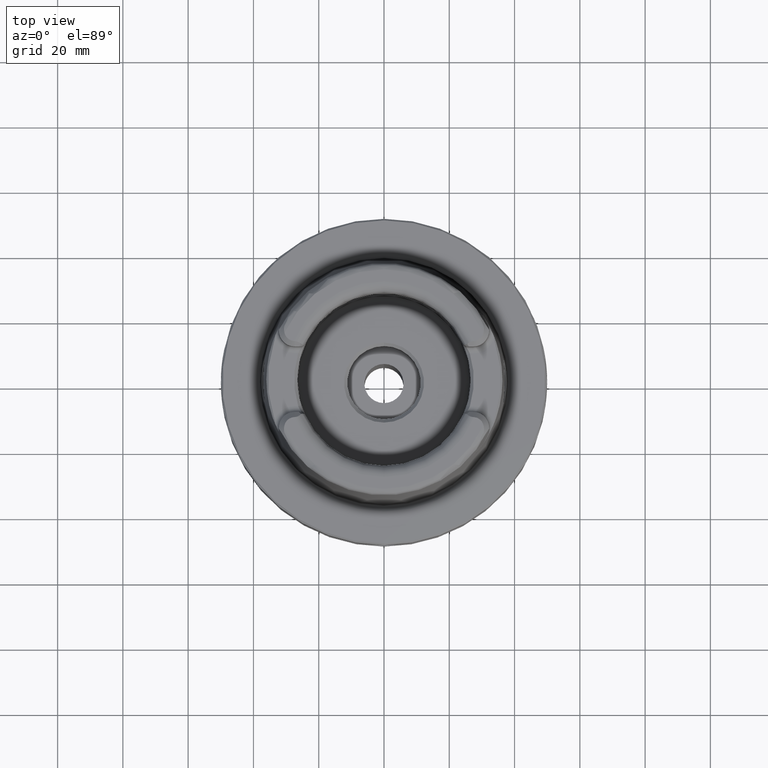
[diagram: clean part render]
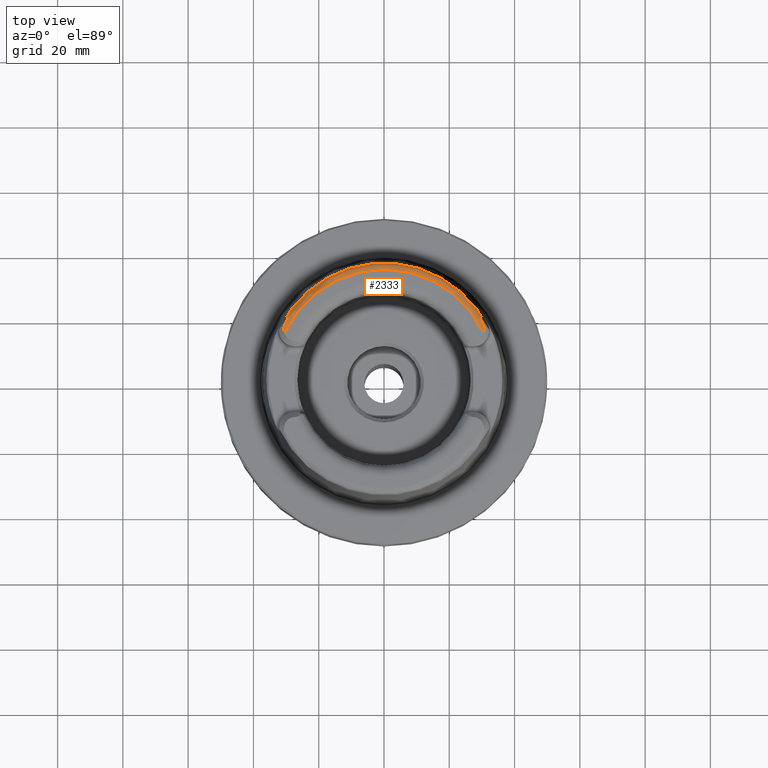
[diagram: same view with one face highlighted and labeled with its STEP entity id]
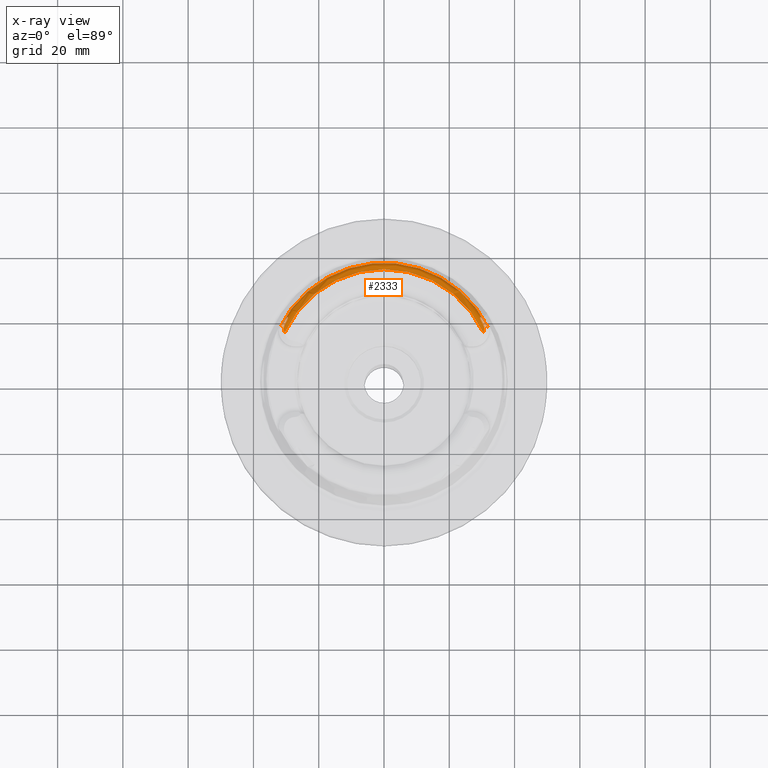
[diagram: x-ray of the same camera — body ghosted, the highlighted face saturated]
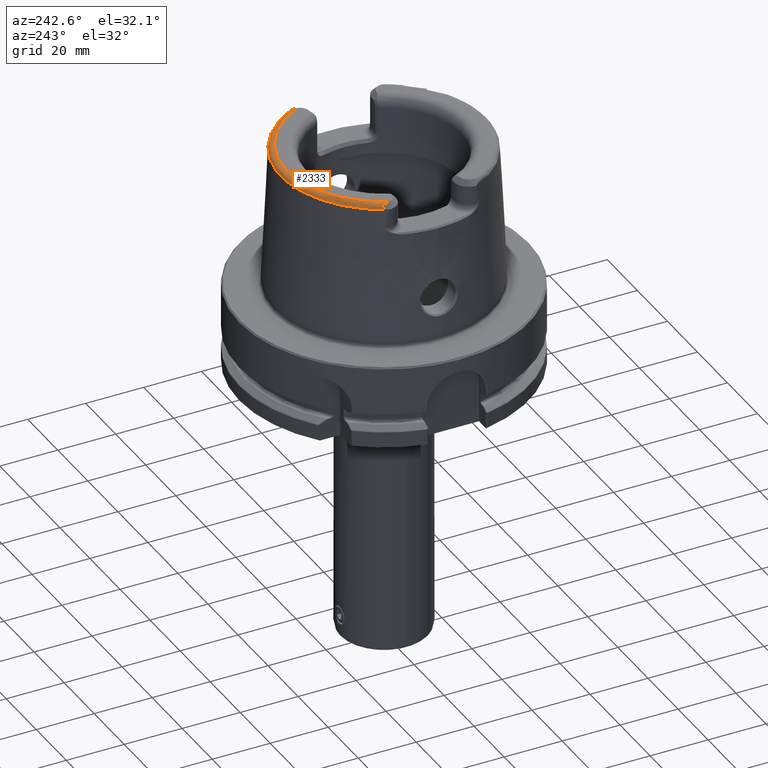
[diagram: same view with one face highlighted and labeled with its STEP entity id]
A machine part, top view. The second image highlights one B-rep face of the part: STEP entity #2333.
The next image is the same camera in x-ray: the body ghosted, the highlighted face saturated — about 0% of this face is hidden behind the body in this view.
A second angle (auxiliary view) of the same face is appended — the face is thin or edge-on in the first view.
In plain terms, the highlighted toroidal blend (fillet) surface has major radius 33.6332 mm and minor (blend) radius 2 mm.
Its self-contained STEP definition (entity closure, byte-faithful):
#1695=VERTEX_POINT('NONE',#4575);
#2101=VERTEX_POINT('NONE',#5020);
#2333=ADVANCED_FACE('NONE',(#5280),#5281,.T.);
#2493=EDGE_CURVE('NONE',#2811,#2615,#5456,.T.);
#2553=VERTEX_POINT('NONE',#5523);
#2555=EDGE_CURVE('NONE',#1695,#3645,#5525,.T.);
#2595=EDGE_CURVE('NONE',#2989,#2553,#5570,.F.);
#2615=VERTEX_POINT('NONE',#5592);
#2811=VERTEX_POINT('NONE',#5804);
#2989=VERTEX_POINT('NONE',#5998);
#3095=EDGE_CURVE('NONE',#3611,#1695,#6116,.F.);
#3117=EDGE_CURVE('NONE',#2615,#2101,#6141,.F.);
#3611=VERTEX_POINT('NONE',#6687);
#3645=VERTEX_POINT('NONE',#6722);
#3697=EDGE_CURVE('NONE',#2553,#3645,#6781,.T.);
#4039=EDGE_CURVE('NONE',#2101,#2989,#7156,.T.);
#4051=EDGE_CURVE('NONE',#2811,#3611,#7168,.T.);
#4575=CARTESIAN_POINT('',(30.4181477395793,16.5634017130128,49.6307843275391));
#5020=CARTESIAN_POINT('',(-31.0580273497776,16.9118313124223,48.9021904068315));
#5280=FACE_OUTER_BOUND('',#9635,.T.);
#5281=TOROIDAL_SURFACE('',#9636,33.6331959518266,2.0);
#5456=CIRCLE('',#10025,35.5860815135478);
#5523=CARTESIAN_POINT('',(-30.496606213829,14.1826964774901,49.9));
#5525=B_SPLINE_CURVE_WITH_KNOTS('',3,(#10198,#10199,#10200,#10201,#10202,#10203,#10204,#10205,#10206,#10207,#10208,#10209,#10210,#10211),.UNSPECIFIED.,.F.,.F.,(4,2,2,2,2,2,4),(-8.06090723250279,-6.36206393140642,-5.47091945156589,-4.69641120084643,-3.4097076069704,-1.6669104195362,-0.0),.UNSPECIFIED.);
#5570=B_SPLINE_CURVE_WITH_KNOTS('',3,(#10286,#10287,#10288,#10289,#10290,#10291,#10292,#10293,#10294,#10295,#10296,#10297,#10298,#10299),.UNSPECIFIED.,.F.,.F.,(4,2,2,2,2,2,4),(-8.43815479009954,-6.61428263942645,-4.74567154742033,-3.56202974667713,-2.6052635841303,-1.50721152599628,-0.0),.UNSPECIFIED.);
#5592=CARTESIAN_POINT('',(-32.125186888805,15.3082188659629,48.3315529895861));
#5804=CARTESIAN_POINT('',(32.1251868888049,15.3082188659629,48.3315529895861));
#5998=CARTESIAN_POINT('',(-30.4181477395794,16.5634017130129,49.6307843275391));
#6116=B_SPLINE_CURVE_WITH_KNOTS('',3,(#11811,#11812,#11813,#11814,#11815,#11816,#11817,#11818,#11819,#11820,#11821,#11822,#11823,#11824,#11825,#11826,#11827,#11828,#11829,#11830,#11831,#11832,#11833,#11834,#11835,#11836,#11837,#11838,#11839,#11840,#11841,#11842,#11843,#11844,#11845,#11846,#11847,#11848,#11849,#11850,#11851,#11852,#11853),.UNSPECIFIED.,.F.,.F.,(4,2,3,2,2,2,2,2,2,2,2,2,2,2,2,2,2,2,2,2,4),(-1.78284719794837,-1.18856479863225,0.0,1.18856479863225,1.78284719794838,2.07998839760644,2.22855899743548,2.37712959726451,2.51917942762677,2.55847751066119,2.59122893654687,2.62526387826526,2.66764170009564,2.82769379727306,3.20616323122387,3.69645777759965,4.18675232397542,5.16734141672698,6.14793050947854,6.63822505585432,7.12851960223009),.UNSPECIFIED.);
#6141=B_SPLINE_CURVE_WITH_KNOTS('',3,(#11937,#11938,#11939,#11940,#11941,#11942,#11943,#11944,#11945,#11946,#11947,#11948,#11949,#11950),.UNSPECIFIED.,.F.,.F.,(4,2,2,2,2,2,4),(-8.34696128507904,-6.36334548457046,-5.01217396447671,-4.16988868928325,-3.2600256206146,-1.88177566473488,-0.0),.UNSPECIFIED.);
#6687=CARTESIAN_POINT('',(31.0580273497776,16.9118313124223,48.9021904068315));
#6722=CARTESIAN_POINT('',(30.496606213829,14.1826964774901,49.9));
#6781=CIRCLE('',#13492,33.6331959518266);
#7156=B_SPLINE_CURVE_WITH_KNOTS('',3,(#14503,#14504,#14505,#14506,#14507,#14508,#14509,#14510,#14511,#14512,#14513,#14514,#14515,#14516,#14517,#14518,#14519,#14520,#14521,#14522,#14523,#14524,#14525,#14526,#14527,#14528,#14529,#14530,#14531,#14532,#14533,#14534,#14535,#14536,#14537,#14538,#14539,#14540,#14541,#14542,#14543,#14544,#14545),.UNSPECIFIED.,.F.,.F.,(4,2,2,2,2,2,2,2,2,2,2,2,2,2,2,2,2,2,3,2,4),(-7.12851960223014,-6.63822505585437,-6.14793050947859,-5.16734141672703,-4.18675232397548,-3.6964577775997,-3.20616323122392,-2.82769379727311,-2.66764170009569,-2.62526387826526,-2.5912289365469,-2.55847751066123,-2.51917942762677,-2.37712959726451,-2.22855899743548,-2.07998839760644,-1.78284719794838,-1.18856479863225,0.0,1.18856479863225,1.78284719794837),.UNSPECIFIED.);
#7168=B_SPLINE_CURVE_WITH_KNOTS('',3,(#14586,#14587,#14588,#14589,#14590,#14591,#14592,#14593,#14594,#14595,#14596,#14597,#14598,#14599),.UNSPECIFIED.,.F.,.F.,(4,2,2,2,2,2,4),(-7.53272338058616,-6.08619009708805,-4.34826499165915,-3.2292003037335,-1.83488229076628,-1.21921091515754,-0.0),.UNSPECIFIED.);
#9635=EDGE_LOOP('',(#16504,#16505,#16506,#16507,#16508,#16509,#16510,#16511));
#9636=AXIS2_PLACEMENT_3D('',#16512,#16513,#16514);
#10025=AXIS2_PLACEMENT_3D('',#16701,#16702,#16703);
#10198=CARTESIAN_POINT('',(28.9133988526347,17.7373551775963,49.8792606274372));
#10199=CARTESIAN_POINT('',(29.2782250600654,17.5737532310577,49.8465418692058));
#10200=CARTESIAN_POINT('',(29.5922991430573,17.391291021356,49.7819645011148));
#10201=CARTESIAN_POINT('',(29.975869392027,17.0976579131723,49.6994887379784));
#10202=CARTESIAN_POINT('',(30.142862122789,16.9541971515403,49.6604782623858));
#10203=CARTESIAN_POINT('',(30.4013377849035,16.6167439857281,49.6251392258631));
#10204=CARTESIAN_POINT('',(30.4850086634878,16.4525620460949,49.6281397580463));
#10205=CARTESIAN_POINT('',(30.6409893431908,15.9532241897072,49.682032585538));
#10206=CARTESIAN_POINT('',(30.6655160031615,15.5834468151489,49.7592267524538));
#10207=CARTESIAN_POINT('',(30.6162319672358,14.6796279934029,49.8927223820798));
#10208=CARTESIAN_POINT('',(30.502853303712,14.1424157810186,49.9358884877607));
#10209=CARTESIAN_POINT('',(30.1883029324988,13.0563161382792,49.7914093068295));
#10210=CARTESIAN_POINT('',(30.0157598988514,12.5795436026635,49.6217949476739));
#10211=CARTESIAN_POINT('',(29.8999278443559,12.1075464399639,49.3524738116563));
#10286=CARTESIAN_POINT('',(-29.8999278443536,12.1075464399543,49.3524738116508));
#10287=CARTESIAN_POINT('',(-30.0150011072334,12.5764516477465,49.6200306811148));
#10288=CARTESIAN_POINT('',(-30.1861108715315,13.050231524033,49.789275423848));
#10289=CARTESIAN_POINT('',(-30.4960566055359,14.1174550441249,49.9339000945124));
#10290=CARTESIAN_POINT('',(-30.6093015213348,14.6424002786496,49.8960203021873));
#10291=CARTESIAN_POINT('',(-30.6626221396572,15.4795980891451,49.7758109132591));
#10292=CARTESIAN_POINT('',(-30.650150978293,15.7806470898254,49.7171279824214));
#10293=CARTESIAN_POINT('',(-30.5581493010658,16.2540931754033,49.6458048251716));
#10294=CARTESIAN_POINT('',(-30.4971479297913,16.414646425286,49.6317556178563));
#10295=CARTESIAN_POINT('',(-30.3449706490392,16.7015809484855,49.6297818800716));
#10296=CARTESIAN_POINT('',(-30.2263250953411,16.8660090312698,49.6463720427751));
#10297=CARTESIAN_POINT('',(-29.7520001882547,17.2957130801289,49.7466040582427));
#10298=CARTESIAN_POINT('',(-29.3702920642866,17.532466884859,49.8382850115825));
#10299=CARTESIAN_POINT('',(-28.9133988526292,17.7373551775988,49.8792606274377));
#11811=CARTESIAN_POINT('',(31.3897635681339,14.962249336377,49.5431795937648));
#11812=CARTESIAN_POINT('',(31.2726253198574,15.1264741317325,49.5675190735265));
#11813=CARTESIAN_POINT('',(31.1585818578514,15.3012295981141,49.5841045932855));
#11814=CARTESIAN_POINT('',(30.8220676862108,15.8399464904068,49.6220182310662));
#11815=CARTESIAN_POINT('',(30.6076136614912,16.2154537187417,49.6307843275395));
#11816=CARTESIAN_POINT('',(30.4181477395789,16.5634017130125,49.6307843275395));
#11817=CARTESIAN_POINT('',(30.2286818176667,16.9113497072832,49.6307843275395));
#11818=CARTESIAN_POINT('',(30.0296252488824,17.29524121497,49.6220182310662));
#11819=CARTESIAN_POINT('',(29.759705549347,17.870220374209,49.5841045932855));
#11820=CARTESIAN_POINT('',(29.6747941885476,18.0608389595142,49.5675190735266));
#11821=CARTESIAN_POINT('',(29.5632144586223,18.3420951723562,49.5310098538839));
#11822=CARTESIAN_POINT('',(29.5287181489416,18.4348535045519,49.5169467893348));
#11823=CARTESIAN_POINT('',(29.483727996141,18.5732175261235,49.4902901859511));
#11824=CARTESIAN_POINT('',(29.4698791991895,18.6191774610041,49.4804736905055));
#11825=CARTESIAN_POINT('',(29.4457774408393,18.7111540301339,49.4576555816437));
#11826=CARTESIAN_POINT('',(29.4353719782737,18.7571645415848,49.4447908287592));
#11827=CARTESIAN_POINT('',(29.4224573042048,18.8476998229,49.4128370414295));
#11828=CARTESIAN_POINT('',(29.4189774699213,18.8999925661698,49.3908856304582));
#11829=CARTESIAN_POINT('',(29.4317670907663,18.9481306398817,49.3566326033173));
#11830=CARTESIAN_POINT('',(29.436500627101,18.9596053493922,49.3469879691486));
#11831=CARTESIAN_POINT('',(29.4466211465293,18.9744146383622,49.3310176071686));
#11832=CARTESIAN_POINT('',(29.4533849426408,18.9809949728125,49.3219305171893));
#11833=CARTESIAN_POINT('',(29.4669273111375,18.989030776645,49.3061941830541));
#11834=CARTESIAN_POINT('',(29.4762552407046,18.9918067293421,49.2966745098528));
#11835=CARTESIAN_POINT('',(29.4949562187951,18.9934583257025,49.2794607515814));
#11836=CARTESIAN_POINT('',(29.508023454718,18.9917575491079,49.2687979438083));
#11837=CARTESIAN_POINT('',(29.5608006966245,18.9776624776468,49.2291874830902));
#11838=CARTESIAN_POINT('',(29.6089739171002,18.9450266935771,49.2024870292197));
#11839=CARTESIAN_POINT('',(29.7401655321078,18.841665577358,49.1366989876354));
#11840=CARTESIAN_POINT('',(29.8401174730229,18.7338961984791,49.1004549747094));
#11841=CARTESIAN_POINT('',(30.0248438174466,18.5189441656543,49.041015869684));
#11842=CARTESIAN_POINT('',(30.1276462540352,18.3854162244992,49.0145867498989));
#11843=CARTESIAN_POINT('',(30.3303846221038,18.1049799075529,48.9706448043945));
#11844=CARTESIAN_POINT('',(30.4301498009429,17.9579127891576,48.9533578545036));
#11845=CARTESIAN_POINT('',(30.7204608145959,17.5088231085204,48.9131599336909));
#11846=CARTESIAN_POINT('',(30.9017142764908,17.1988951800544,48.9021904068309));
#11847=CARTESIAN_POINT('',(31.2143404230653,16.6247674447904,48.9021904068309));
#11848=CARTESIAN_POINT('',(31.3763261519427,16.3043477794573,48.9131599336909));
#11849=CARTESIAN_POINT('',(31.596030400512,15.8168110433403,48.9533578545036));
#11850=CARTESIAN_POINT('',(31.6654314315224,15.6532099274621,48.9706448043945));
#11851=CARTESIAN_POINT('',(31.7909867373625,15.330745605521,49.0145867498989));
#11852=CARTESIAN_POINT('',(31.847367005483,15.1719396944083,49.041015869684));
#11853=CARTESIAN_POINT('',(31.8926979146863,15.0185457462428,49.0745608481768));
#11937=CARTESIAN_POINT('',(-30.2116624400413,18.8342860202505,48.2540236101194));
#11938=CARTESIAN_POINT('',(-30.5058904141756,18.2644096833249,48.5420280782422));
#11939=CARTESIAN_POINT('',(-30.6806779131762,17.7551289430722,48.7530089072963));
#11940=CARTESIAN_POINT('',(-30.9610605080474,17.0858769965184,48.9091781065548));
#11941=CARTESIAN_POINT('',(-31.072222270211,16.8694708678443,48.9182448431465));
#11942=CARTESIAN_POINT('',(-31.3100868355204,16.50027386852,48.8536617853371));
#11943=CARTESIAN_POINT('',(-31.4152756859514,16.3528735589521,48.8094174709496));
#11944=CARTESIAN_POINT('',(-31.6700690967477,15.9976217847326,48.6705480919533));
#11945=CARTESIAN_POINT('',(-31.8170546762828,15.792664788329,48.574739666687));
#11946=CARTESIAN_POINT('',(-32.1968008007568,15.2064375588417,48.2829406285319));
#11947=CARTESIAN_POINT('',(-32.3990987737049,14.8412957779921,48.0889236783862));
#11948=CARTESIAN_POINT('',(-32.7966169440778,13.9403451507452,47.6188765352327));
#11949=CARTESIAN_POINT('',(-32.9625266881704,13.3934843888072,47.3379059872261));
#11950=CARTESIAN_POINT('',(-33.0475119309828,12.8336539118959,47.0680529895864));
#13492=AXIS2_PLACEMENT_3D('',#18130,#18131,#18132);
#14503=CARTESIAN_POINT('',(-31.8926979146863,15.0185457462428,49.0745608481768));
#14504=CARTESIAN_POINT('',(-31.847367005483,15.1719396944083,49.041015869684));
#14505=CARTESIAN_POINT('',(-31.7909867373625,15.330745605521,49.0145867498989));
#14506=CARTESIAN_POINT('',(-31.6654314315224,15.6532099274621,48.9706448043945));
#14507=CARTESIAN_POINT('',(-31.596030400512,15.8168110433403,48.9533578545036));
#14508=CARTESIAN_POINT('',(-31.3763261519427,16.3043477794573,48.9131599336909));
#14509=CARTESIAN_POINT('',(-31.2143404230653,16.6247674447904,48.9021904068309));
#14510=CARTESIAN_POINT('',(-30.9017142764908,17.1988951800544,48.9021904068309));
#14511=CARTESIAN_POINT('',(-30.7204608145959,17.5088231085204,48.9131599336909));
#14512=CARTESIAN_POINT('',(-30.4301498009429,17.9579127891576,48.9533578545036));
#14513=CARTESIAN_POINT('',(-30.3303846221038,18.1049799075529,48.9706448043945));
#14514=CARTESIAN_POINT('',(-30.1276462540352,18.3854162244992,49.0145867498989));
#14515=CARTESIAN_POINT('',(-30.0248438174466,18.5189441656543,49.041015869684));
#14516=CARTESIAN_POINT('',(-29.8401174730229,18.7338961984791,49.1004549747094));
#14517=CARTESIAN_POINT('',(-29.7401655321078,18.841665577358,49.1366989876354));
#14518=CARTESIAN_POINT('',(-29.6089739171002,18.9450266935771,49.2024870292197));
#14519=CARTESIAN_POINT('',(-29.5608006966245,18.9776624776468,49.2291874830902));
#14520=CARTESIAN_POINT('',(-29.508023454718,18.9917575491079,49.2687979438083));
#14521=CARTESIAN_POINT('',(-29.4949562187951,18.9934583257025,49.2794607515814));
#14522=CARTESIAN_POINT('',(-29.4762552407046,18.9918067293422,49.2966745098529));
#14523=CARTESIAN_POINT('',(-29.4669273111375,18.989030776645,49.3061941830541));
#14524=CARTESIAN_POINT('',(-29.4533849426408,18.9809949728125,49.3219305171893));
#14525=CARTESIAN_POINT('',(-29.4466211465293,18.9744146383623,49.3310176071686));
#14526=CARTESIAN_POINT('',(-29.4365006271009,18.9596053493922,49.3469879691486));
#14527=CARTESIAN_POINT('',(-29.4317670907663,18.9481306398817,49.3566326033173));
#14528=CARTESIAN_POINT('',(-29.4189774699213,18.8999925661698,49.3908856304582));
#14529=CARTESIAN_POINT('',(-29.4224573042048,18.8476998229,49.4128370414295));
#14530=CARTESIAN_POINT('',(-29.4353719782737,18.7571645415848,49.4447908287592));
#14531=CARTESIAN_POINT('',(-29.4457774408392,18.7111540301339,49.4576555816437));
#14532=CARTESIAN_POINT('',(-29.4698791991895,18.6191774610041,49.4804736905055));
#14533=CARTESIAN_POINT('',(-29.483727996141,18.5732175261235,49.4902901859511));
#14534=CARTESIAN_POINT('',(-29.5287181489416,18.4348535045518,49.5169467893348));
#14535=CARTESIAN_POINT('',(-29.5632144586223,18.3420951723562,49.5310098538839));
#14536=CARTESIAN_POINT('',(-29.6747941885475,18.0608389595142,49.5675190735266));
#14537=CARTESIAN_POINT('',(-29.7597055493469,17.870220374209,49.5841045932855));
#14538=CARTESIAN_POINT('',(-30.0296252488824,17.29524121497,49.6220182310662));
#14539=CARTESIAN_POINT('',(-30.2286818176667,16.9113497072832,49.6307843275395));
#14540=CARTESIAN_POINT('',(-30.4181477395789,16.5634017130125,49.6307843275395));
#14541=CARTESIAN_POINT('',(-30.6076136614912,16.2154537187417,49.6307843275395));
#14542=CARTESIAN_POINT('',(-30.8220676862108,15.8399464904068,49.6220182310662));
#14543=CARTESIAN_POINT('',(-31.1585818578514,15.3012295981141,49.5841045932855));
#14544=CARTESIAN_POINT('',(-31.2726253198574,15.1264741317325,49.5675190735265));
#14545=CARTESIAN_POINT('',(-31.3897635681339,14.962249336377,49.5431795937648));
#14586=CARTESIAN_POINT('',(33.0475119309797,12.8336539119159,47.068052989596));
#14587=CARTESIAN_POINT('',(32.9573960520778,13.4272818618075,47.354197257134));
#14588=CARTESIAN_POINT('',(32.7764134519328,14.0061389634469,47.6528532297698));
#14589=CARTESIAN_POINT('',(32.2221487117672,15.2141660931877,48.2839565699655));
#14590=CARTESIAN_POINT('',(31.8668139658094,15.7225796603234,48.5546066625283));
#14591=CARTESIAN_POINT('',(31.4062777226208,16.3658201516297,48.818769612926));
#14592=CARTESIAN_POINT('',(31.2703358477338,16.5550479199004,48.8714055146182));
#14593=CARTESIAN_POINT('',(31.0205818531079,16.9635820411016,48.9181411192144));
#14594=CARTESIAN_POINT('',(30.9107659078191,17.196135963201,48.8960912918053));
#14595=CARTESIAN_POINT('',(30.7286828662301,17.6501473356109,48.7657283015998));
#14596=CARTESIAN_POINT('',(30.6739187069993,17.7917175796608,48.7160755183704));
#14597=CARTESIAN_POINT('',(30.5105337929737,18.1995914732794,48.5583762525857));
#14598=CARTESIAN_POINT('',(30.3817438756325,18.5048632800139,48.4205074855513));
#14599=CARTESIAN_POINT('',(30.2116624400436,18.8342860202468,48.2540236101196));
#16504=ORIENTED_EDGE('',*,*,#4051,.F.);
#16505=ORIENTED_EDGE('',*,*,#2493,.T.);
#16506=ORIENTED_EDGE('',*,*,#3117,.T.);
#16507=ORIENTED_EDGE('',*,*,#4039,.T.);
#16508=ORIENTED_EDGE('',*,*,#2595,.T.);
#16509=ORIENTED_EDGE('',*,*,#3697,.T.);
#16510=ORIENTED_EDGE('',*,*,#2555,.F.);
#16511=ORIENTED_EDGE('',*,*,#3095,.F.);
#16512=CARTESIAN_POINT('',(0.0,0.0,47.9));
#16513=DIRECTION('',(0.0,0.0,-1.0));
#16514=DIRECTION('',(1.0,0.0,0.0));
#16701=CARTESIAN_POINT('',(0.0,0.0,48.3315529895861));
#16702=DIRECTION('',(0.0,-0.0,1.0));
#16703=DIRECTION('',(1.0,0.0,0.0));
#18130=CARTESIAN_POINT('',(0.0,-7.09472654493769E-020,49.9));
#18131=DIRECTION('',(0.0,3.54736327246885E-020,-1.0));
#18132=DIRECTION('',(1.0,0.0,0.0));